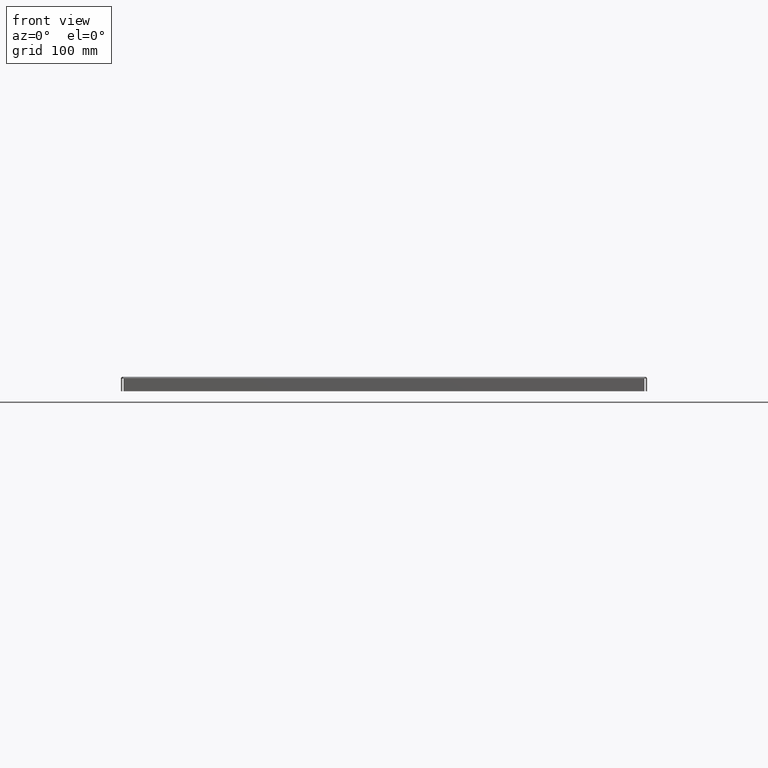
[diagram: clean part render]
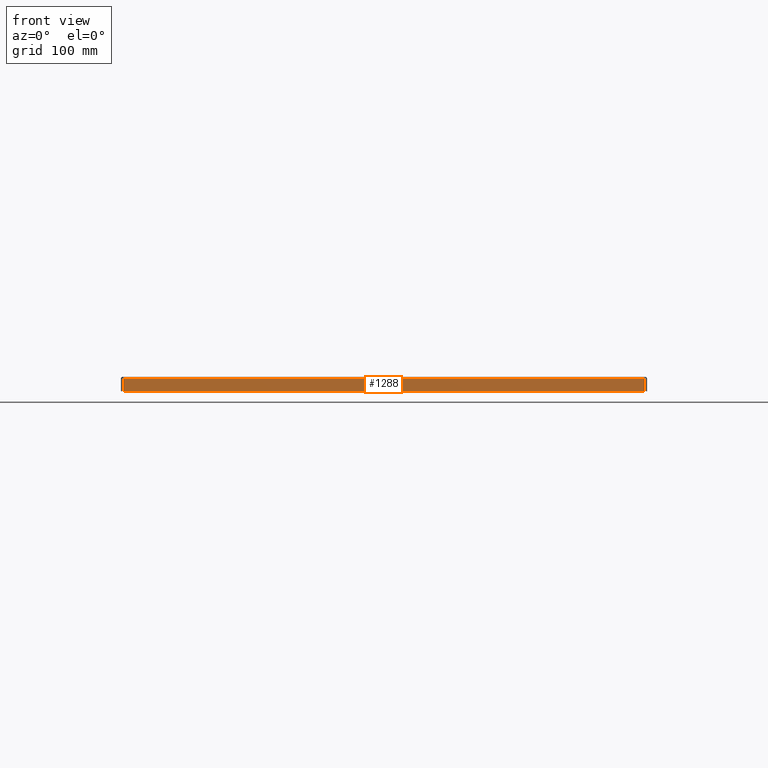
[diagram: same view with one face highlighted and labeled with its STEP entity id]
A machine part, front view. The second image highlights one B-rep face of the part: STEP entity #1288.
In plain terms, the highlighted planar face has unit normal (0, -1, 0).
Its self-contained STEP definition (entity closure, byte-faithful):
#1047=CARTESIAN_POINT('',(31.839958739263768,0.0,-0.015600000000001));
#1048=VERTEX_POINT('',#1047);
#1049=CARTESIAN_POINT('',(0.160041260736237,-1.092739E-017,-0.015600000000001));
#1050=VERTEX_POINT('',#1049);
#1051=CARTESIAN_POINT('',(31.839958739263764,4.898398E-018,-0.0156));
#1052=DIRECTION('',(-1.0,0.0,0.0));
#1053=VECTOR('',#1052,31.679917478527528);
#1054=LINE('',#1051,#1053);
#1055=EDGE_CURVE('',#1048,#1050,#1054,.T.);
#1131=CARTESIAN_POINT('',(0.16004126073624,-4.370957E-017,-0.781250000000001));
#1132=VERTEX_POINT('',#1131);
#1133=CARTESIAN_POINT('',(0.16004126073624,-4.688254E-017,-0.781250000000001));
#1134=DIRECTION('',(0.0,0.0,1.0));
#1135=VECTOR('',#1134,0.76565);
#1136=LINE('',#1133,#1135);
#1137=EDGE_CURVE('',#1132,#1050,#1136,.T.);
#1241=CARTESIAN_POINT('',(31.839958739263768,-3.278218E-017,-0.781250000000001));
#1242=VERTEX_POINT('',#1241);
#1243=CARTESIAN_POINT('',(31.839958739263768,1.092739E-017,-0.015600000000001));
#1244=DIRECTION('',(0.0,0.0,-1.0));
#1245=VECTOR('',#1244,0.76565);
#1246=LINE('',#1243,#1245);
#1247=EDGE_CURVE('',#1048,#1242,#1246,.T.);
#1265=CARTESIAN_POINT('',(31.839958739263768,-3.278218E-017,-0.781250000000001));
#1266=DIRECTION('',(-1.0,0.0,0.0));
#1267=VECTOR('',#1266,31.679917478527528);
#1268=LINE('',#1265,#1267);
#1269=EDGE_CURVE('',#1242,#1132,#1268,.T.);
#1277=CARTESIAN_POINT('',(16.0,-2.185478E-017,-0.361770140794651));
#1278=DIRECTION('',(0.0,-1.0,0.0));
#1279=DIRECTION('',(1.0,0.0,0.0));
#1280=AXIS2_PLACEMENT_3D('',#1277,#1278,#1279);
#1281=PLANE('',#1280);
#1282=ORIENTED_EDGE('',*,*,#1055,.T.);
#1283=ORIENTED_EDGE('',*,*,#1137,.F.);
#1284=ORIENTED_EDGE('',*,*,#1269,.F.);
#1285=ORIENTED_EDGE('',*,*,#1247,.F.);
#1286=EDGE_LOOP('',(#1282,#1283,#1284,#1285));
#1287=FACE_OUTER_BOUND('',#1286,.T.);
#1288=ADVANCED_FACE('',(#1287),#1281,.T.);